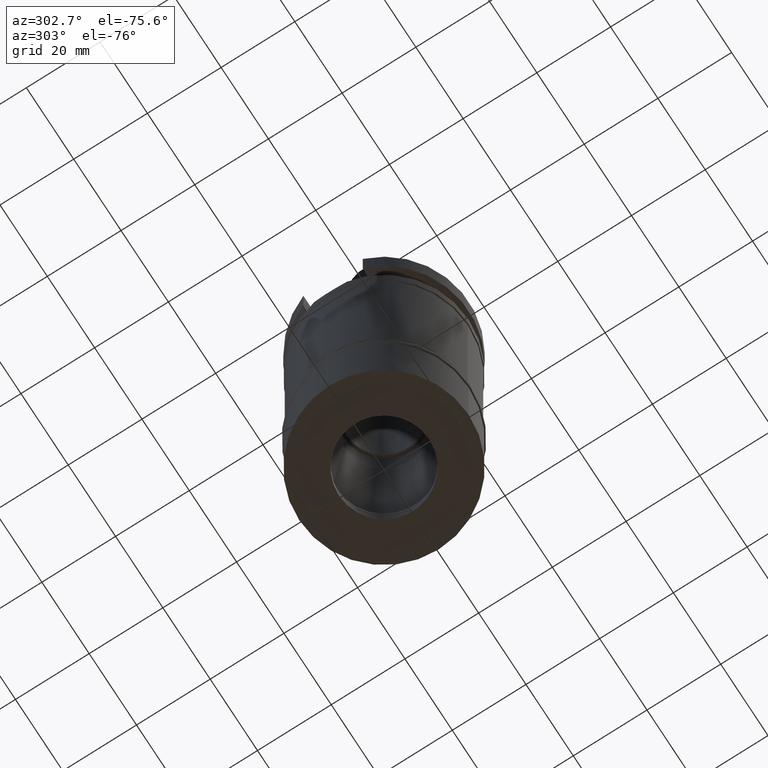
[diagram: clean part render]
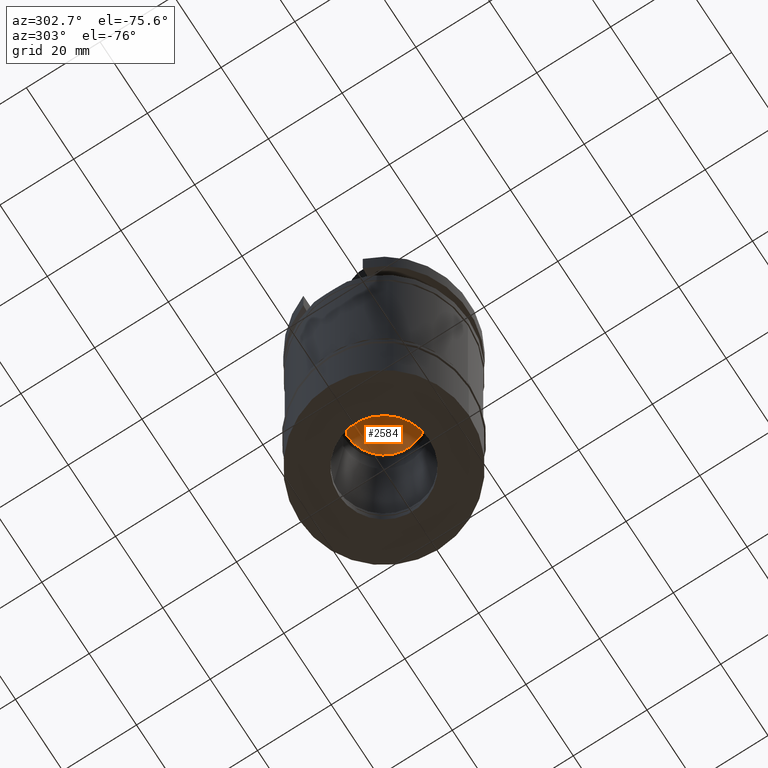
[diagram: same view with one face highlighted and labeled with its STEP entity id]
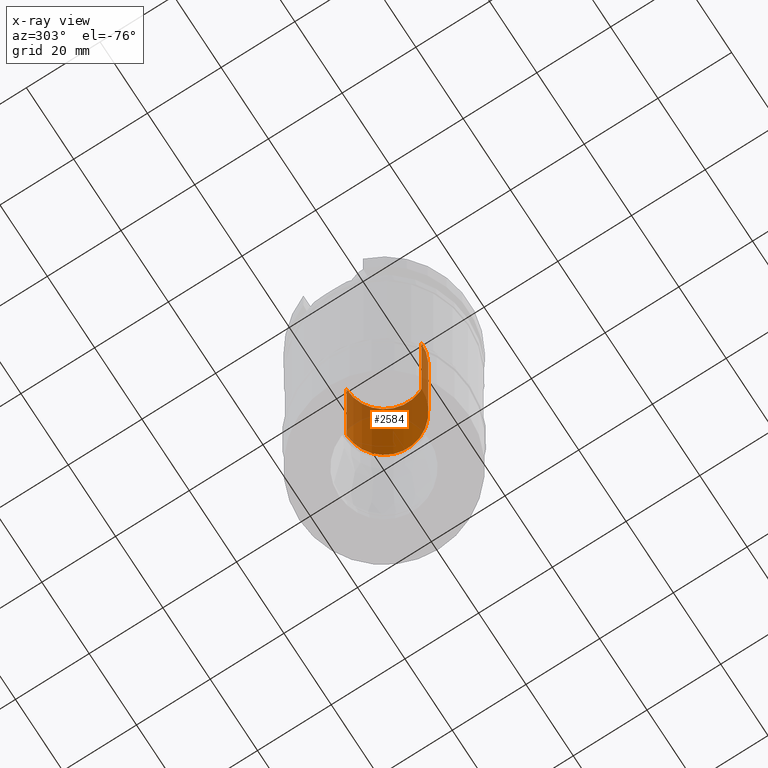
[diagram: x-ray of the same camera — body ghosted, the highlighted face saturated]
A machine part, auxiliary view. The second image highlights one B-rep face of the part: STEP entity #2584.
The next image is the same camera in x-ray: the body ghosted, the highlighted face saturated — about 46% of this face is hidden behind the body in this view.
In plain terms, the highlighted cylindrical surface (partial cylindrical patch) has radius 10.15 mm, axis along (0, 0, -1).
Its self-contained STEP definition (entity closure, byte-faithful):
#87 = ORIENTED_EDGE ( 'NONE', *, *, #2636, .T. ) ;
#167 = CIRCLE ( 'NONE', #2142, 10.14999999999999858 ) ;
#200 = VERTEX_POINT ( 'NONE', #2453 ) ;
#205 = DIRECTION ( 'NONE',  ( 0.0000000000000000000, -1.000000000000000000, 0.0000000000000000000 ) ) ;
#211 = CARTESIAN_POINT ( 'NONE',  ( 0.0000000000000000000, -10.14999999999999858, -54.00000000000000000 ) ) ;
#306 = CARTESIAN_POINT ( 'NONE',  ( 0.0000000000000000000, 10.14999999999999858, -54.00000000000000000 ) ) ;
#308 = EDGE_CURVE ( 'NONE', #2826, #677, #578, .T. ) ;
#333 = CIRCLE ( 'NONE', #2259, 10.14999999999999858 ) ;
#411 = DIRECTION ( 'NONE',  ( 0.0000000000000000000, 1.000000000000000000, 0.0000000000000000000 ) ) ;
#450 = CARTESIAN_POINT ( 'NONE',  ( 0.0000000000000000000, 1.904570702033999722E-14, -12.00000000000000000 ) ) ;
#578 = LINE ( 'NONE', #2617, #619 ) ;
#619 = VECTOR ( 'NONE', #2432, 1000.000000000000000 ) ;
#677 = VERTEX_POINT ( 'NONE', #1527 ) ;
#782 = LINE ( 'NONE', #306, #794 ) ;
#794 = VECTOR ( 'NONE', #1691, 1000.000000000000000 ) ;
#889 = EDGE_LOOP ( 'NONE', ( #87, #2767, #2244, #2292 ) ) ;
#894 = DIRECTION ( 'NONE',  ( 0.0000000000000000000, 0.0000000000000000000, -1.000000000000000000 ) ) ;
#1057 = EDGE_CURVE ( 'NONE', #2181, #200, #782, .T. ) ;
#1341 = CARTESIAN_POINT ( 'NONE',  ( 0.0000000000000000000, 1.904570702033999722E-14, -54.00000000000000000 ) ) ;
#1351 = EDGE_CURVE ( 'NONE', #677, #200, #167, .T. ) ;
#1527 = CARTESIAN_POINT ( 'NONE',  ( 0.0000000000000000000, -10.14999999999999858, -12.00000000000000000 ) ) ;
#1691 = DIRECTION ( 'NONE',  ( 0.0000000000000000000, 0.0000000000000000000, 1.000000000000000000 ) ) ;
#1740 = FACE_OUTER_BOUND ( 'NONE', #889, .T. ) ;
#1755 = DIRECTION ( 'NONE',  ( 0.0000000000000000000, -1.000000000000000000, 0.0000000000000000000 ) ) ;
#1991 = CARTESIAN_POINT ( 'NONE',  ( 0.0000000000000000000, 10.14999999999999858, -54.00000000000000000 ) ) ;
#2142 = AXIS2_PLACEMENT_3D ( 'NONE', #450, #2281, #205 ) ;
#2181 = VERTEX_POINT ( 'NONE', #1991 ) ;
#2244 = ORIENTED_EDGE ( 'NONE', *, *, #1351, .T. ) ;
#2259 = AXIS2_PLACEMENT_3D ( 'NONE', #1341, #2926, #411 ) ;
#2281 = DIRECTION ( 'NONE',  ( 0.0000000000000000000, 0.0000000000000000000, 1.000000000000000000 ) ) ;
#2292 = ORIENTED_EDGE ( 'NONE', *, *, #1057, .F. ) ;
#2432 = DIRECTION ( 'NONE',  ( 0.0000000000000000000, 0.0000000000000000000, 1.000000000000000000 ) ) ;
#2453 = CARTESIAN_POINT ( 'NONE',  ( 0.0000000000000000000, 10.14999999999999858, -12.00000000000000000 ) ) ;
#2478 = CYLINDRICAL_SURFACE ( 'NONE', #2796, 10.14999999999999858 ) ;
#2584 = ADVANCED_FACE ( 'NONE', ( #1740 ), #2478, .F. ) ;
#2617 = CARTESIAN_POINT ( 'NONE',  ( 0.0000000000000000000, -10.14999999999999858, -54.00000000000000000 ) ) ;
#2636 = EDGE_CURVE ( 'NONE', #2181, #2826, #333, .T. ) ;
#2767 = ORIENTED_EDGE ( 'NONE', *, *, #308, .T. ) ;
#2796 = AXIS2_PLACEMENT_3D ( 'NONE', #2968, #894, #1755 ) ;
#2826 = VERTEX_POINT ( 'NONE', #211 ) ;
#2926 = DIRECTION ( 'NONE',  ( 0.0000000000000000000, 0.0000000000000000000, -1.000000000000000000 ) ) ;
#2968 = CARTESIAN_POINT ( 'NONE',  ( 0.0000000000000000000, 1.904570702033999722E-14, 55.52000000000000313 ) ) ;